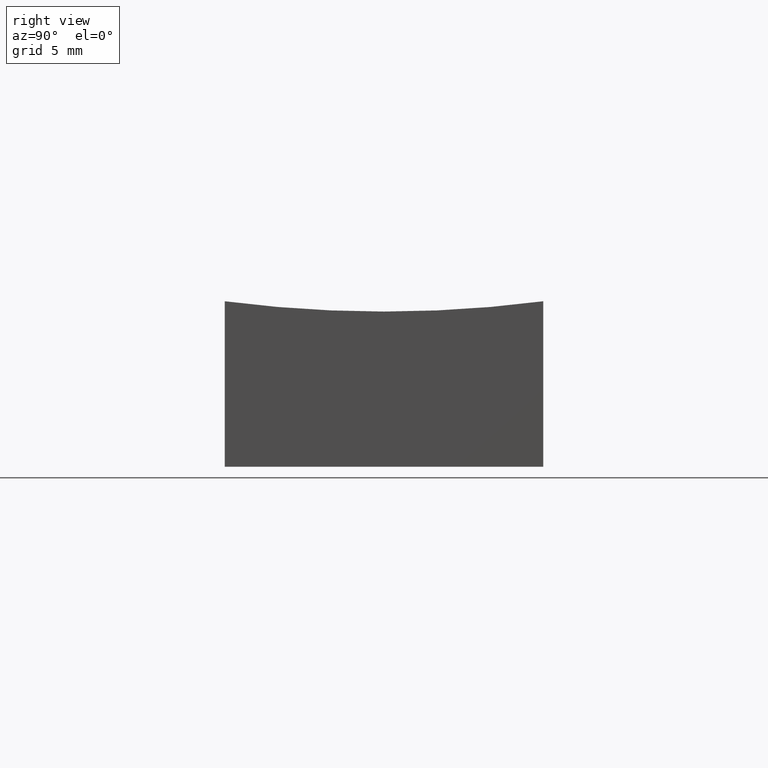
[diagram: clean part render]
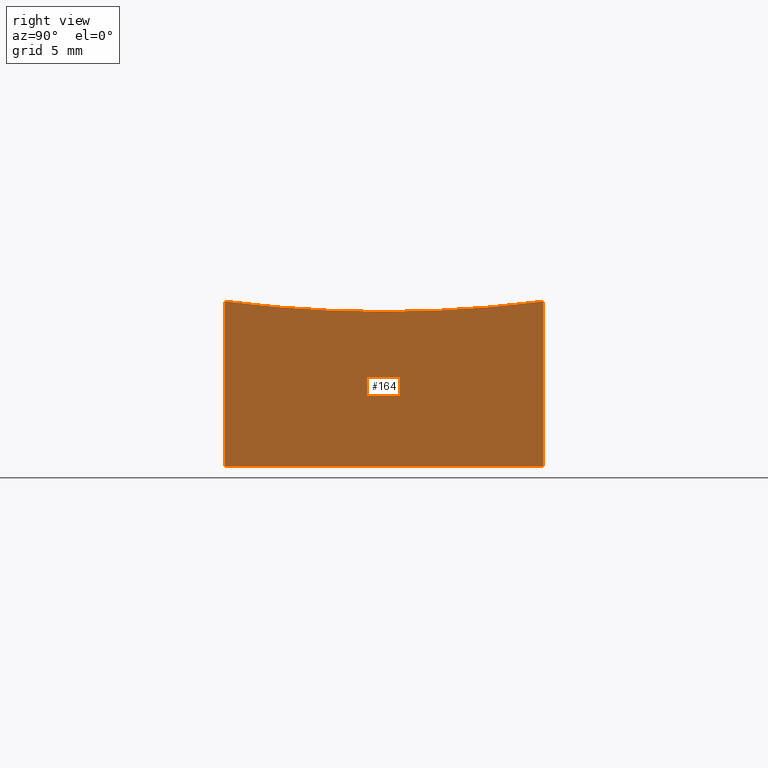
[diagram: same view with one face highlighted and labeled with its STEP entity id]
A machine part, right view. The second image highlights one B-rep face of the part: STEP entity #164.
In plain terms, the highlighted planar face has unit normal (-1, 0, 0).
Its self-contained STEP definition (entity closure, byte-faithful):
#12 = VECTOR ( 'NONE', #156, 1000.000000000000000 ) ;
#16 = CARTESIAN_POINT ( 'NONE',  ( 25.00000000000000355, 12.50000000000000000, 15.00000000000000000 ) ) ;
#23 = CARTESIAN_POINT ( 'NONE',  ( 24.99999999999999645, -12.50000000000000000, 0.000000000000000000 ) ) ;
#25 = CARTESIAN_POINT ( 'NONE',  ( 25.00000000000000355, 12.50000000000000000, 12.98567815164238048 ) ) ;
#27 = EDGE_CURVE ( 'NONE', #189, #130, #96, .T. ) ;
#28 = AXIS2_PLACEMENT_3D ( 'NONE', #40, #237, #43 ) ;
#39 = FACE_OUTER_BOUND ( 'NONE', #207, .T. ) ;
#40 = CARTESIAN_POINT ( 'NONE',  ( 25.00000000000000355, 12.50000000000000000, 15.00000000000000000 ) ) ;
#41 = CARTESIAN_POINT ( 'NONE',  ( 24.99999999999999645, -12.50000000000000000, 15.00000000000000000 ) ) ;
#42 = AXIS2_PLACEMENT_3D ( 'NONE', #55, #209, #214 ) ;
#43 = DIRECTION ( 'NONE',  ( -2.775557561562891351E-16, -1.000000000000000000, 0.000000000000000000 ) ) ;
#45 = ORIENTED_EDGE ( 'NONE', *, *, #88, .F. ) ;
#46 = ORIENTED_EDGE ( 'NONE', *, *, #127, .F. ) ;
#53 = CIRCLE ( 'NONE', #85, 96.82458365518543530 ) ;
#55 = CARTESIAN_POINT ( 'NONE',  ( 25.00000000000000000, -6.938893903907225222E-15, 109.0000000000000000 ) ) ;
#68 = VERTEX_POINT ( 'NONE', #194 ) ;
#70 = EDGE_CURVE ( 'NONE', #238, #130, #74, .T. ) ;
#71 = DIRECTION ( 'NONE',  ( 1.000000000000000000, -2.775557561562891351E-16, -0.000000000000000000 ) ) ;
#74 = LINE ( 'NONE', #134, #12 ) ;
#84 = ORIENTED_EDGE ( 'NONE', *, *, #70, .T. ) ;
#85 = AXIS2_PLACEMENT_3D ( 'NONE', #230, #71, #136 ) ;
#88 = EDGE_CURVE ( 'NONE', #68, #225, #53, .T. ) ;
#96 = LINE ( 'NONE', #16, #222 ) ;
#101 = VECTOR ( 'NONE', #197, 1000.000000000000000 ) ;
#127 = EDGE_CURVE ( 'NONE', #225, #189, #135, .T. ) ;
#130 = VERTEX_POINT ( 'NONE', #161 ) ;
#134 = CARTESIAN_POINT ( 'NONE',  ( 25.00000000000000355, 12.50000000000000000, 0.000000000000000000 ) ) ;
#135 = CIRCLE ( 'NONE', #42, 96.82458365518543530 ) ;
#136 = DIRECTION ( 'NONE',  ( -2.866583523299504894E-16, -1.000000000000000000, 0.000000000000000000 ) ) ;
#138 = EDGE_CURVE ( 'NONE', #68, #238, #139, .T. ) ;
#139 = LINE ( 'NONE', #41, #101 ) ;
#149 = ORIENTED_EDGE ( 'NONE', *, *, #138, .T. ) ;
#156 = DIRECTION ( 'NONE',  ( 2.775557561562891351E-16, 1.000000000000000000, -0.000000000000000000 ) ) ;
#161 = CARTESIAN_POINT ( 'NONE',  ( 25.00000000000000355, 12.50000000000000000, 0.000000000000000000 ) ) ;
#164 = ADVANCED_FACE ( 'NONE', ( #39 ), #219, .F. ) ;
#167 = ORIENTED_EDGE ( 'NONE', *, *, #27, .F. ) ;
#189 = VERTEX_POINT ( 'NONE', #25 ) ;
#194 = CARTESIAN_POINT ( 'NONE',  ( 24.99999999999999645, -12.50000000000000000, 12.98567815164238048 ) ) ;
#197 = DIRECTION ( 'NONE',  ( -0.000000000000000000, -0.000000000000000000, -1.000000000000000000 ) ) ;
#207 = EDGE_LOOP ( 'NONE', ( #45, #149, #84, #167, #46 ) ) ;
#209 = DIRECTION ( 'NONE',  ( 1.000000000000000000, -2.775557561562891351E-16, -0.000000000000000000 ) ) ;
#214 = DIRECTION ( 'NONE',  ( -2.866583523299504894E-16, -1.000000000000000000, 0.000000000000000000 ) ) ;
#219 = PLANE ( 'NONE',  #28 ) ;
#222 = VECTOR ( 'NONE', #251, 1000.000000000000000 ) ;
#223 = CARTESIAN_POINT ( 'NONE',  ( 25.00000000000000000, 3.851859888774471706E-31, 12.17541634481456647 ) ) ;
#225 = VERTEX_POINT ( 'NONE', #223 ) ;
#230 = CARTESIAN_POINT ( 'NONE',  ( 25.00000000000000000, -6.938893903907225222E-15, 109.0000000000000000 ) ) ;
#237 = DIRECTION ( 'NONE',  ( -1.000000000000000000, 2.775557561562891351E-16, 0.000000000000000000 ) ) ;
#238 = VERTEX_POINT ( 'NONE', #23 ) ;
#251 = DIRECTION ( 'NONE',  ( -0.000000000000000000, -0.000000000000000000, -1.000000000000000000 ) ) ;